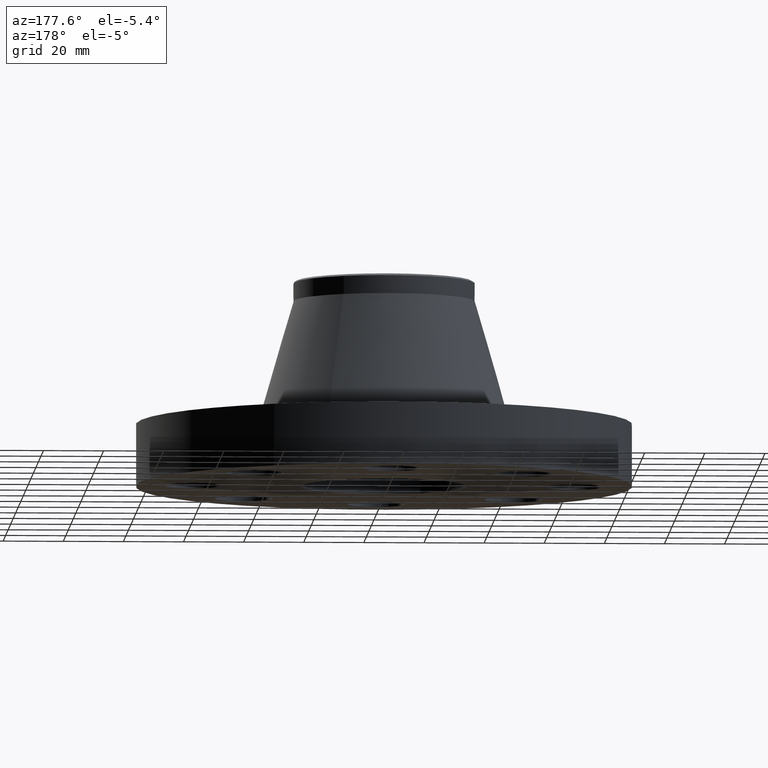
[diagram: clean part render]
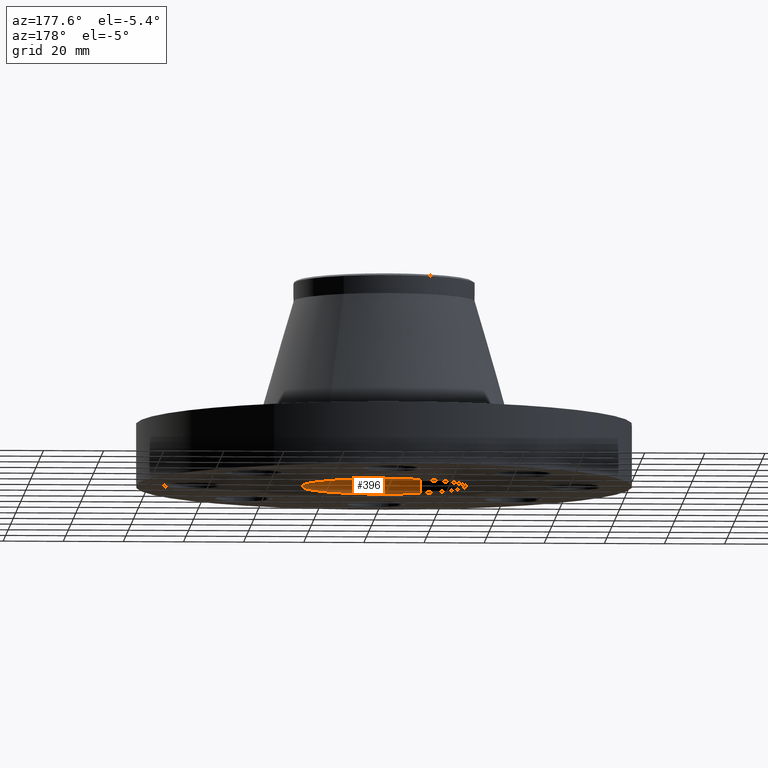
[diagram: same view with one face highlighted and labeled with its STEP entity id]
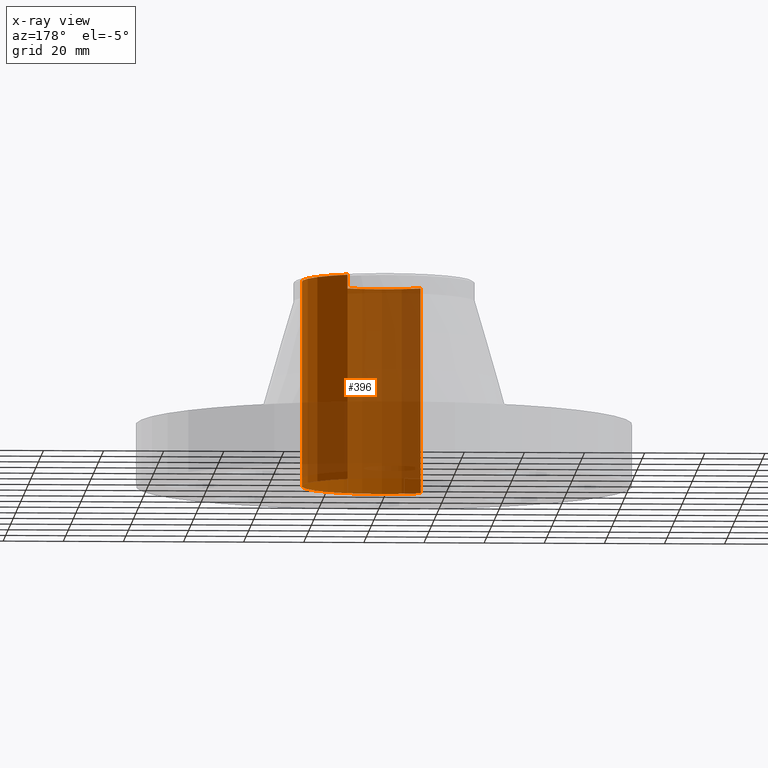
[diagram: x-ray of the same camera — body ghosted, the highlighted face saturated]
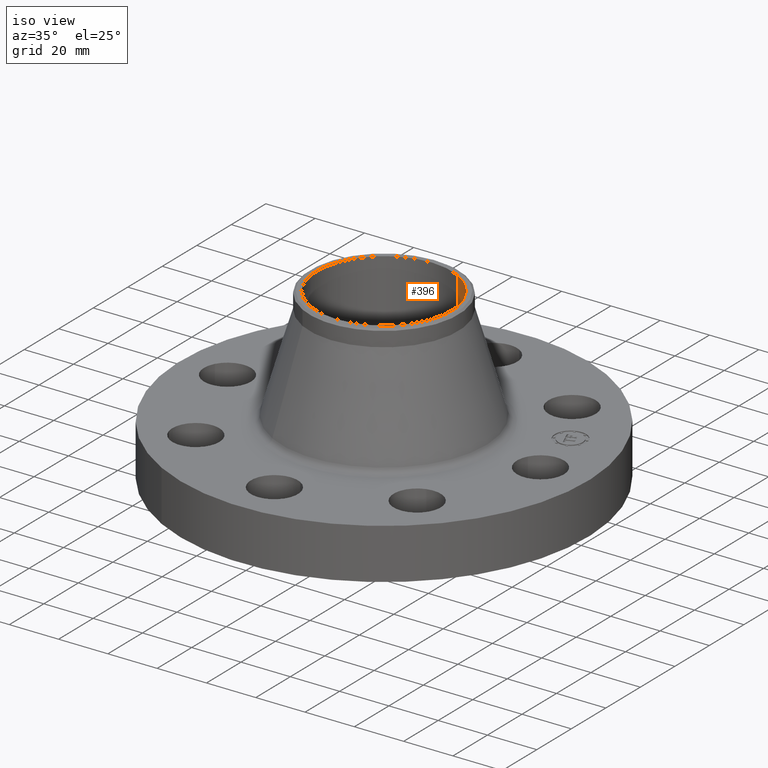
[diagram: same view with one face highlighted and labeled with its STEP entity id]
A machine part, auxiliary view. The second image highlights one B-rep face of the part: STEP entity #396.
The next image is the same camera in x-ray: the body ghosted, the highlighted face saturated — about 69% of this face is hidden behind the body in this view.
A second angle (iso view) of the same face is appended — the face is thin or edge-on in the first view.
In plain terms, the highlighted cylindrical surface (partial cylindrical patch) has radius 27.3939 mm, axis along (0, 0, -1).
Its self-contained STEP definition (entity closure, byte-faithful):
#343=AXIS2_PLACEMENT_3D('Cylinder Axis2P3D',#340,#341,#342) ;
#382=AXIS2_PLACEMENT_3D('Circle Axis2P3D',#380,#381,$) ;
#387=AXIS2_PLACEMENT_3D('Circle Axis2P3D',#385,#386,$) ;
#340=CARTESIAN_POINT('Axis2P3D Location',(0.,0.,1.34500000001)) ;
#349=CARTESIAN_POINT('Vertex',(-0.517060443387,-0.946472793003,2.69000000001)) ;
#351=CARTESIAN_POINT('Vertex',(0.517060443387,0.946472793003,2.69000000001)) ;
#354=CARTESIAN_POINT('Line Origine',(-0.517060443387,-0.946472793003,1.34500000001)) ;
#358=CARTESIAN_POINT('Vertex',(-0.517060443387,-0.946472793003,-1.95818864186E-015)) ;
#365=CARTESIAN_POINT('Vertex',(0.517060443387,0.946472793003,-1.95818864186E-015)) ;
#368=CARTESIAN_POINT('Line Origine',(0.517060443387,0.946472793003,1.34500000001)) ;
#380=CARTESIAN_POINT('Axis2P3D Location',(0.,0.,2.69000000001)) ;
#385=CARTESIAN_POINT('Axis2P3D Location',(0.,0.,-2.23792987641E-015)) ;
#341=DIRECTION('Axis2P3D Direction',(0.,0.,-0.0393700787402)) ;
#342=DIRECTION('Axis2P3D XDirection',(0.0188750212049,0.0345504945626,0.)) ;
#355=DIRECTION('Vector Direction',(0.,0.,-0.0393700787402)) ;
#369=DIRECTION('Vector Direction',(0.,0.,-0.0393700787402)) ;
#381=DIRECTION('Axis2P3D Direction',(0.,0.,-0.0393700787402)) ;
#386=DIRECTION('Axis2P3D Direction',(0.,0.,-0.0393700787402)) ;
#356=VECTOR('Line Direction',#355,0.0393700787402) ;
#370=VECTOR('Line Direction',#369,0.0393700787402) ;
#391=ORIENTED_EDGE('',*,*,#384,.F.) ;
#392=ORIENTED_EDGE('',*,*,#372,.T.) ;
#393=ORIENTED_EDGE('',*,*,#389,.T.) ;
#394=ORIENTED_EDGE('',*,*,#360,.F.) ;
#396=ADVANCED_FACE('PartBody',(#395),#344,.F.) ;
#383=CIRCLE('generated circle',#382,1.0785) ;
#388=CIRCLE('generated circle',#387,1.0785) ;
#344=CYLINDRICAL_SURFACE('generated cylinder',#343,1.0785) ;
#360=EDGE_CURVE('',#350,#359,#357,.T.) ;
#372=EDGE_CURVE('',#352,#366,#371,.T.) ;
#384=EDGE_CURVE('',#352,#350,#383,.T.) ;
#389=EDGE_CURVE('',#366,#359,#388,.T.) ;
#390=EDGE_LOOP('',(#391,#392,#393,#394)) ;
#395=FACE_OUTER_BOUND('',#390,.T.) ;
#357=LINE('Line',#354,#356) ;
#371=LINE('Line',#368,#370) ;
#350=VERTEX_POINT('',#349) ;
#352=VERTEX_POINT('',#351) ;
#359=VERTEX_POINT('',#358) ;
#366=VERTEX_POINT('',#365) ;